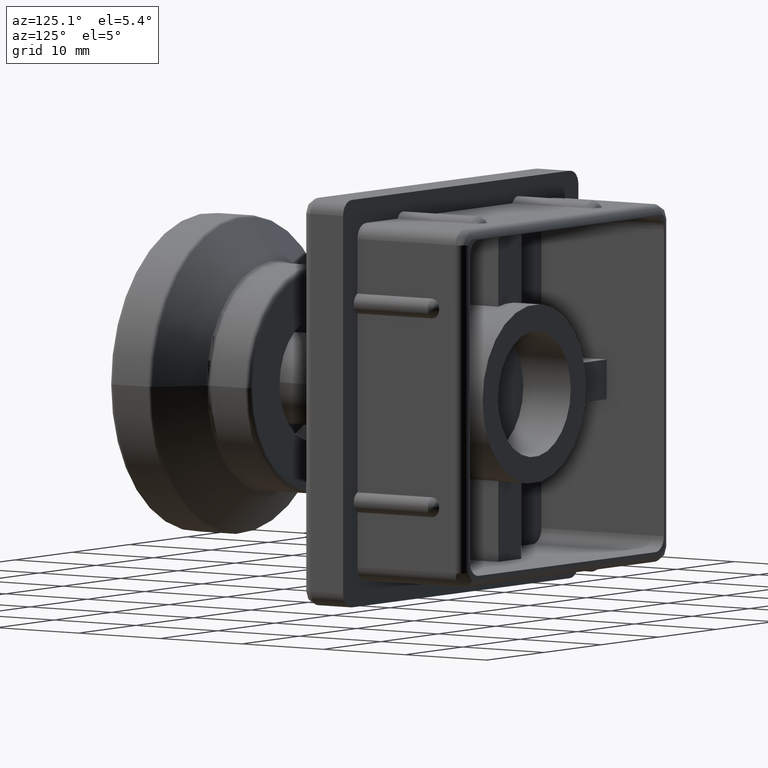
[diagram: clean part render]
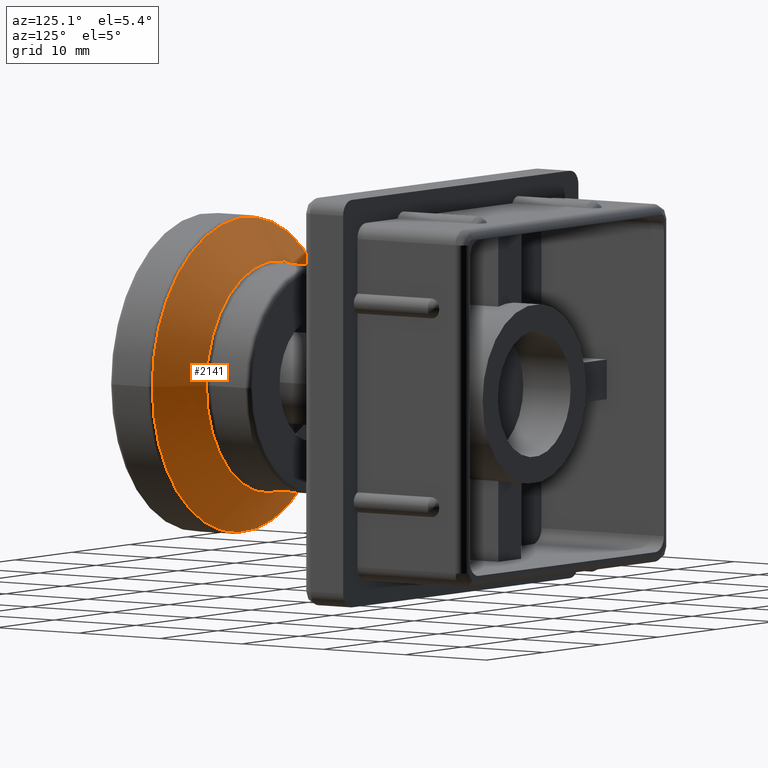
[diagram: same view with one face highlighted and labeled with its STEP entity id]
A machine part, auxiliary view. The second image highlights one B-rep face of the part: STEP entity #2141.
In plain terms, the highlighted conical surface has half-angle 48.366 deg.
Its self-contained STEP definition (entity closure, byte-faithful):
#43=CONICAL_SURFACE('',#2291,13.75,48.3664606634298);
#51=FACE_BOUND('',#402,.T.);
#89=CIRCLE('',#2290,15.832181919415);
#90=CIRCLE('',#2292,11.667818080585);
#266=FACE_OUTER_BOUND('',#401,.T.);
#401=EDGE_LOOP('',(#1535));
#402=EDGE_LOOP('',(#1536));
#956=VERTEX_POINT('',#3390);
#957=VERTEX_POINT('',#3393);
#1191=EDGE_CURVE('',#956,#956,#89,.T.);
#1192=EDGE_CURVE('',#957,#957,#90,.T.);
#1535=ORIENTED_EDGE('',*,*,#1192,.F.);
#1536=ORIENTED_EDGE('',*,*,#1191,.F.);
#2141=ADVANCED_FACE('',(#266,#51),#43,.T.);
#2290=AXIS2_PLACEMENT_3D('',#3391,#2599,#2600);
#2291=AXIS2_PLACEMENT_3D('',#3392,#2601,#2602);
#2292=AXIS2_PLACEMENT_3D('',#3394,#2603,#2604);
#2599=DIRECTION('center_axis',(7.01244484352275E-17,-1.,7.01244484352276E-17));
#2600=DIRECTION('ref_axis',(-1.,-7.01244484352275E-17,0.));
#2601=DIRECTION('center_axis',(6.34413156928661E-17,-1.,0.));
#2602=DIRECTION('ref_axis',(1.,0.,0.));
#2603=DIRECTION('center_axis',(0.,1.,0.));
#2604=DIRECTION('ref_axis',(-1.,0.,0.));
#3390=CARTESIAN_POINT('',(15.832181919415,5.1491716271867,2.46519032881566E-31));
#3391=CARTESIAN_POINT('Origin',(-1.11022302462516E-15,5.1491716271867,-1.93888309111301E-15));
#3392=CARTESIAN_POINT('Origin',(-4.44089209850063E-16,7.,0.));
#3393=CARTESIAN_POINT('',(11.667818080585,8.8508283728133,-2.85779121308442E-15));
#3394=CARTESIAN_POINT('Origin',(0.,8.8508283728133,-1.42889560654221E-15));